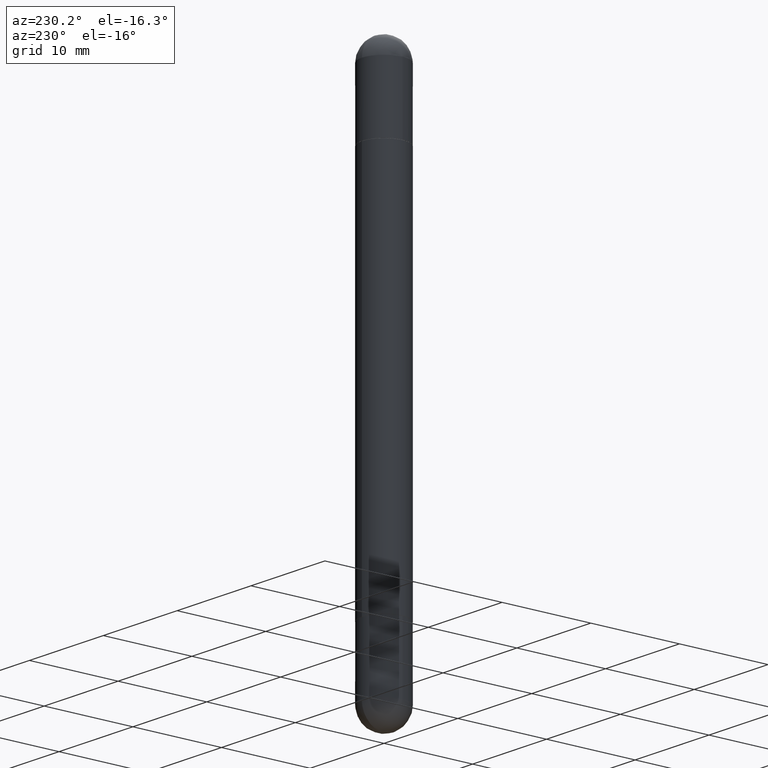
[diagram: clean part render]
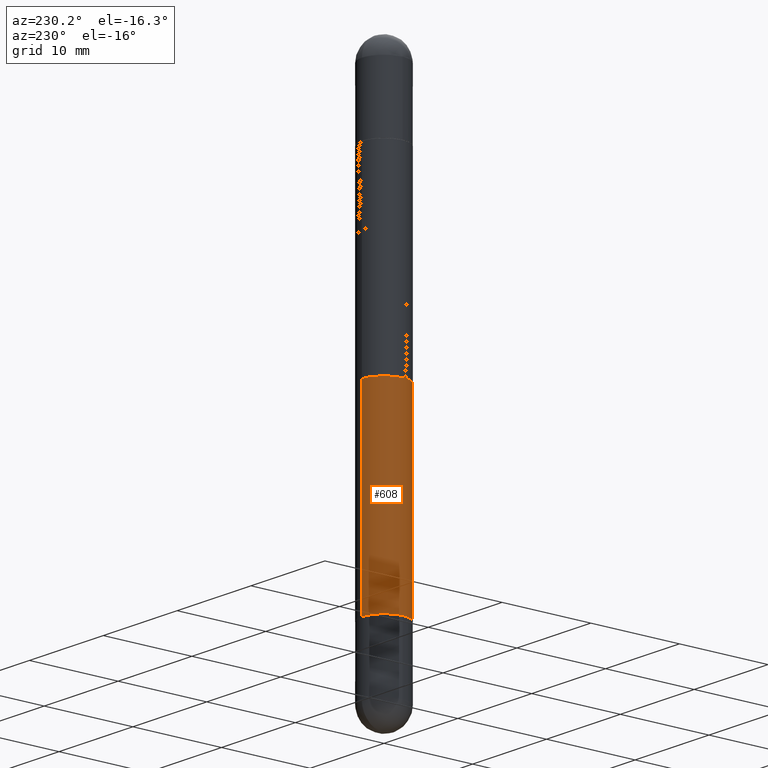
[diagram: same view with one face highlighted and labeled with its STEP entity id]
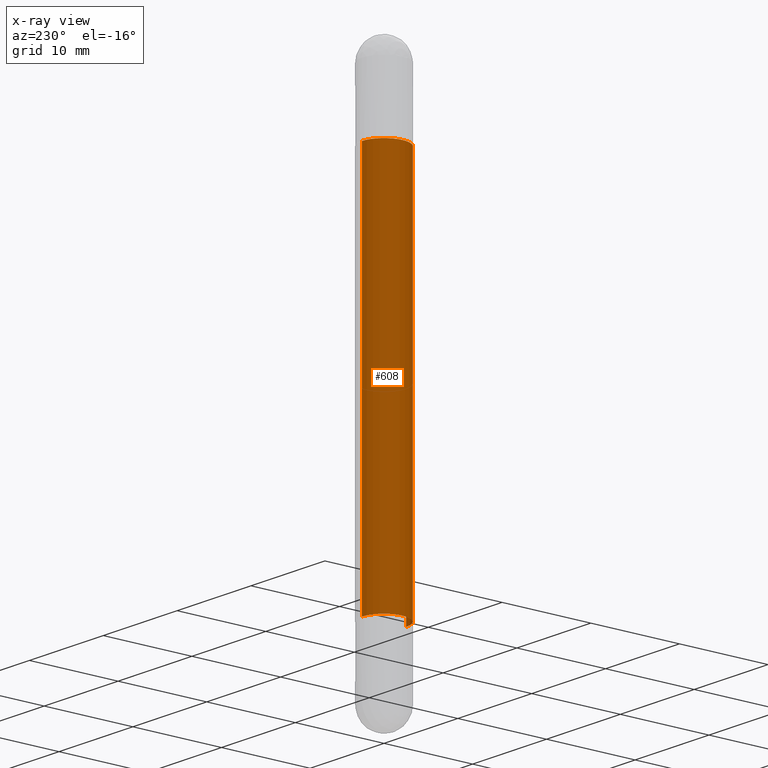
[diagram: x-ray of the same camera — body ghosted, the highlighted face saturated]
A machine part, auxiliary view. The second image highlights one B-rep face of the part: STEP entity #608.
The next image is the same camera in x-ray: the body ghosted, the highlighted face saturated — about 0% of this face is hidden behind the body in this view.
In plain terms, the highlighted cylindrical surface (edge-blend (fillet) strip) has radius 2.5006 mm, axis along (-0, 0, -1).
Its self-contained STEP definition (entity closure, byte-faithful):
#37 = LINE ( 'NONE', #657, #295 ) ;
#44 = AXIS2_PLACEMENT_3D ( 'NONE', #271, #394, #277 ) ;
#45 = ORIENTED_EDGE ( 'NONE', *, *, #130, .T. ) ;
#60 = EDGE_CURVE ( 'NONE', #375, #528, #247, .T. ) ;
#93 = EDGE_CURVE ( 'NONE', #655, #528, #37, .T. ) ;
#105 = CARTESIAN_POINT ( 'NONE',  ( -6.874726756181635521E-16, -0.09845000000000754536, -0.3947000000000003839 ) ) ;
#108 = DIRECTION ( 'NONE',  ( -6.982962677686265133E-15, -1.000000000000000000, -5.549716594543950441E-15 ) ) ;
#130 = EDGE_CURVE ( 'NONE', #787, #375, #182, .T. ) ;
#158 = DIRECTION ( 'NONE',  ( -6.982962677686265922E-15, -1.000000000000000000, 2.774858297271972065E-15 ) ) ;
#167 = DIRECTION ( 'NONE',  ( -2.445824352885372423E-29, 3.490972175731946571E-15, 1.000000000000000000 ) ) ;
#180 = CARTESIAN_POINT ( 'NONE',  ( -6.874726756181636507E-16, -0.09845000000000751761, -2.085599999999999898 ) ) ;
#182 = LINE ( 'NONE', #228, #219 ) ;
#213 = ORIENTED_EDGE ( 'NONE', *, *, #93, .F. ) ;
#219 = VECTOR ( 'NONE', #360, 39.37007874015748143 ) ;
#228 = CARTESIAN_POINT ( 'NONE',  ( 6.754160278806080944E-16, 0.09845000000000013463, -2.480299999999999727 ) ) ;
#247 = CIRCLE ( 'NONE', #421, 0.09845000000000024565 ) ;
#271 = CARTESIAN_POINT ( 'NONE',  ( 5.101011270377733069E-29, -7.280771569706549945E-15, -0.3947000000000000508 ) ) ;
#277 = DIRECTION ( 'NONE',  ( -6.982962677686265922E-15, -1.000000000000000000, -3.468572871589965081E-15 ) ) ;
#286 = ORIENTED_EDGE ( 'NONE', *, *, #492, .F. ) ;
#290 = FACE_OUTER_BOUND ( 'NONE', #306, .T. ) ;
#292 = ORIENTED_EDGE ( 'NONE', *, *, #60, .T. ) ;
#295 = VECTOR ( 'NONE', #470, 39.37007874015748143 ) ;
#306 = EDGE_LOOP ( 'NONE', ( #286, #45, #292, #213 ) ) ;
#357 = DIRECTION ( 'NONE',  ( -2.445824352885372423E-29, 3.490972175731946571E-15, -1.000000000000000000 ) ) ;
#360 = DIRECTION ( 'NONE',  ( -2.445824352885372423E-29, 3.490972175731946571E-15, -1.000000000000000000 ) ) ;
#375 = VERTEX_POINT ( 'NONE', #767 ) ;
#394 = DIRECTION ( 'NONE',  ( 2.445824352885372423E-29, -3.490972175731946571E-15, 1.000000000000000000 ) ) ;
#421 = AXIS2_PLACEMENT_3D ( 'NONE', #714, #167, #158 ) ;
#457 = AXIS2_PLACEMENT_3D ( 'NONE', #737, #357, #108 ) ;
#470 = DIRECTION ( 'NONE',  ( -2.445824352885372423E-29, 3.490972175731946571E-15, -1.000000000000000000 ) ) ;
#492 = EDGE_CURVE ( 'NONE', #787, #655, #668, .T. ) ;
#528 = VERTEX_POINT ( 'NONE', #180 ) ;
#533 = CYLINDRICAL_SURFACE ( 'NONE', #457, 0.09845000000000013463 ) ;
#608 = ADVANCED_FACE ( 'NONE', ( #290 ), #533, .T. ) ;
#655 = VERTEX_POINT ( 'NONE', #105 ) ;
#657 = CARTESIAN_POINT ( 'NONE',  ( -6.874726756182137434E-16, -0.09845000000000013463, -2.480300000000001059 ) ) ;
#668 = CIRCLE ( 'NONE', #44, 0.09845000000000024565 ) ;
#684 = CARTESIAN_POINT ( 'NONE',  ( 6.754160278806600606E-16, 0.09844999999999295981, -0.3946999999999996622 ) ) ;
#714 = CARTESIAN_POINT ( 'NONE',  ( 5.101011270377733069E-29, -7.280771569706549945E-15, -2.085600000000000342 ) ) ;
#737 = CARTESIAN_POINT ( 'NONE',  ( 0.000000000000000000, 0.000000000000000000, -2.480300000000000171 ) ) ;
#767 = CARTESIAN_POINT ( 'NONE',  ( 6.754160278806389586E-16, 0.09844999999999297369, -2.085600000000000342 ) ) ;
#787 = VERTEX_POINT ( 'NONE', #684 ) ;